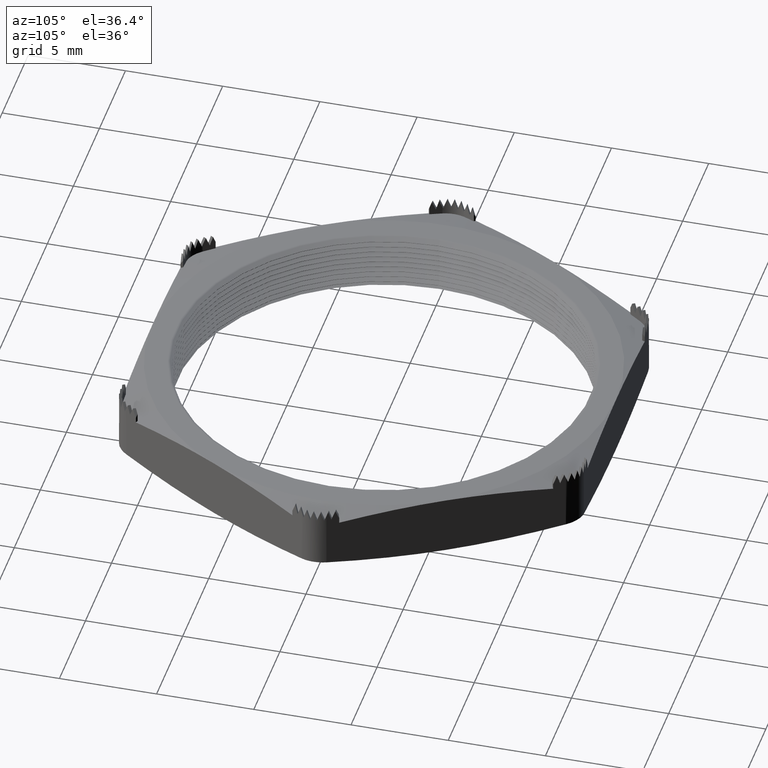
[diagram: clean part render]
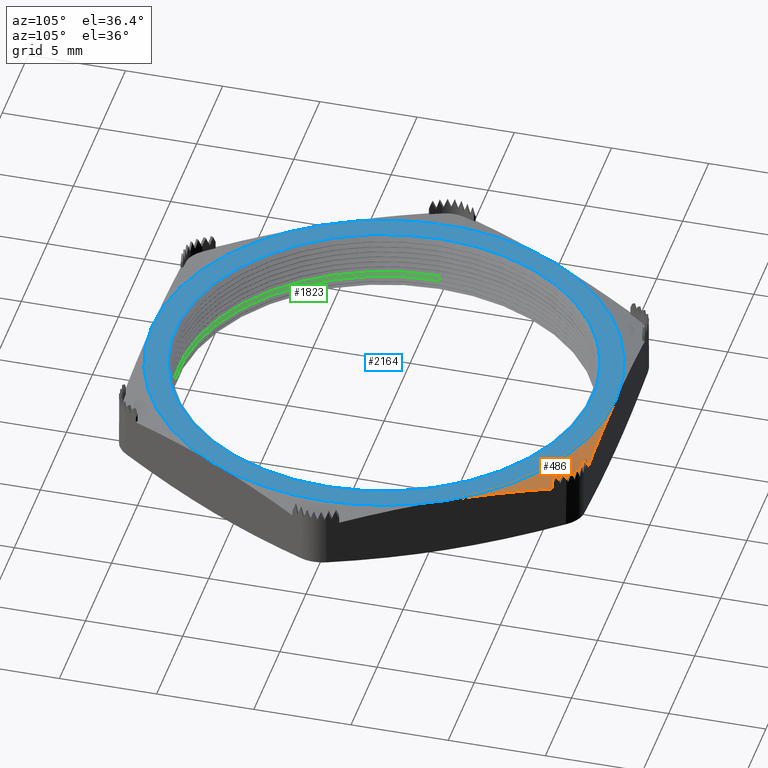
[diagram: same view with three faces highlighted in distinct colors, each labeled with its STEP entity id]
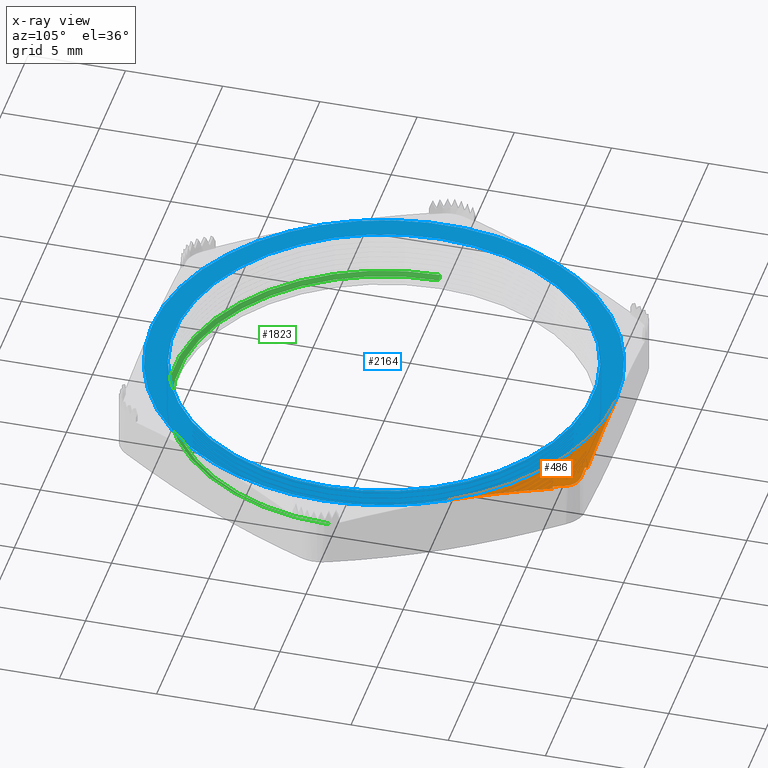
[diagram: x-ray of the same camera — body ghosted, the three highlighted faces saturated]
A machine part, auxiliary view with three faces highlighted in distinct colors.
The next image is the same camera in x-ray (body ghosted, the three faces saturated) — at least one of them is partly hidden behind the body in this view.
Their STEP definitions:

[orange] entity #486 — the highlighted conical surface has half-angle 75 deg.
#18 = VERTEX_POINT ( 'NONE', #2373 ) ;
#61 = EDGE_CURVE ( 'NONE', #1806, #18, #2451, .T. ) ;
#76 = VERTEX_POINT ( 'NONE', #2506 ) ;
#78 = EDGE_CURVE ( 'NONE', #79, #76, #2498, .T. ) ;
#79 = VERTEX_POINT ( 'NONE', #2497 ) ;
#471 = EDGE_CURVE ( 'NONE', #496, #472, #3168, .T. ) ;
#472 = VERTEX_POINT ( 'NONE', #3167 ) ;
#473 = ORIENTED_EDGE ( 'NONE', *, *, #474, .T. ) ;
#474 = EDGE_CURVE ( 'NONE', #472, #79, #3161, .T. ) ;
#475 = ORIENTED_EDGE ( 'NONE', *, *, #78, .T. ) ;
#476 = ORIENTED_EDGE ( 'NONE', *, *, #2172, .F. ) ;
#477 = ORIENTED_EDGE ( 'NONE', *, *, #61, .T. ) ;
#486 = ADVANCED_FACE ( 'NONE', ( #3193 ), #3183, .T. ) ;
#487 = EDGE_LOOP ( 'NONE', ( #488, #491, #494, #497, #473, #475, #476, #477 ) ) ;
#488 = ORIENTED_EDGE ( 'NONE', *, *, #489, .T. ) ;
#489 = EDGE_CURVE ( 'NONE', #18, #490, #3228, .T. ) ;
#490 = VERTEX_POINT ( 'NONE', #3227 ) ;
#491 = ORIENTED_EDGE ( 'NONE', *, *, #492, .T. ) ;
#492 = EDGE_CURVE ( 'NONE', #490, #493, #3222, .T. ) ;
#493 = VERTEX_POINT ( 'NONE', #3221 ) ;
#494 = ORIENTED_EDGE ( 'NONE', *, *, #495, .T. ) ;
#495 = EDGE_CURVE ( 'NONE', #493, #496, #3215, .T. ) ;
#496 = VERTEX_POINT ( 'NONE', #3214 ) ;
#497 = ORIENTED_EDGE ( 'NONE', *, *, #471, .T. ) ;
#1806 = VERTEX_POINT ( 'NONE', #5350 ) ;
#2172 = EDGE_CURVE ( 'NONE', #1806, #76, #6077, .T. ) ;
#2373 = CARTESIAN_POINT ( 'NONE',  ( 0.2987883832488624800, 0.4224833395016088800, 0.1072826604981893100 ) ) ;
#2446 = CARTESIAN_POINT ( 'NONE',  ( 0.2987883832488624800, 0.4224833395016088800, 0.1072826604981893100 ) ) ;
#2447 = CARTESIAN_POINT ( 'NONE',  ( 0.3348695687588038000, 0.3599888930010725600, 0.1153720740230359000 ) ) ;
#2448 = CARTESIAN_POINT ( 'NONE',  ( 0.3709507542687450800, 0.2974944465005363000, 0.1199999999999999700 ) ) ;
#2449 = CARTESIAN_POINT ( 'NONE',  ( 0.4070319397786862400, 0.2350000000000000100, 0.1200000000000000000 ) ) ;
#2451 = B_SPLINE_CURVE_WITH_KNOTS ( 'NONE', 3,
 ( #2449, #2448, #2447, #2446 ),
 .UNSPECIFIED., .F., .F.,
 ( 4, 4 ),
 ( 0.006159403611822597700, 0.01165817628353764600 ),
 .UNSPECIFIED. ) ;
#2493 = CARTESIAN_POINT ( 'NONE',  ( 0.0000000000000000000, 0.4700000000000000300, 0.1200000000000000000 ) ) ;
#2494 = CARTESIAN_POINT ( 'NONE',  ( 0.07231509973300751000, 0.4700000000000000300, 0.1200000000000000000 ) ) ;
#2495 = CARTESIAN_POINT ( 'NONE',  ( 0.1444629044170035700, 0.4700000000000000300, 0.1153565859980811800 ) ) ;
#2496 = CARTESIAN_POINT ( 'NONE',  ( 0.2164871130596065800, 0.4700000000000000300, 0.1072826604981939600 ) ) ;
#2497 = CARTESIAN_POINT ( 'NONE',  ( 0.2164871130596065800, 0.4700000000000000300, 0.1072826604981939600 ) ) ;
#2498 = B_SPLINE_CURVE_WITH_KNOTS ( 'NONE', 3,
 ( #2496, #2495, #2494, #2493 ),
 .UNSPECIFIED., .F., .F.,
 ( 4, 4 ),
 ( 0.02699905887814523000, 0.03253233604985127800 ),
 .UNSPECIFIED. ) ;
#2506 = CARTESIAN_POINT ( 'NONE',  ( 0.0000000000000000000, 0.4700000000000000300, 0.1200000000000000000 ) ) ;
#3157 = CARTESIAN_POINT ( 'NONE',  ( 0.2164871130596374700, 0.4666239525238720100, 0.1081038093983640200 ) ) ;
#3158 = CARTESIAN_POINT ( 'NONE',  ( 0.2164871130596375300, 0.4658119868147233600, 0.1083011389553743000 ) ) ;
#3159 = CARTESIAN_POINT ( 'NONE',  ( 0.2164871130596369700, 0.4650000000000024700, 0.1084983816075398700 ) ) ;
#3161 = B_SPLINE_CURVE_WITH_KNOTS ( 'NONE', 3,
 ( #3159, #3158, #3157, #3211, #3210, #3209, #3208 ),
 .UNSPECIFIED., .F., .F.,
 ( 4, 3, 4 ),
 ( 0.001428135866877830500, 0.001491808358741321200, 0.001558835567903115800 ),
 .UNSPECIFIED. ) ;
#3163 = CARTESIAN_POINT ( 'NONE',  ( 0.2164871130596369700, 0.4650000000000024700, 0.1084983816075398700 ) ) ;
#3164 = CARTESIAN_POINT ( 'NONE',  ( 0.2251594705227408000, 0.4650000000000026300, 0.1075176094620743800 ) ) ;
#3165 = CARTESIAN_POINT ( 'NONE',  ( 0.2338263287161614900, 0.4650000000000026900, 0.1064890226203382700 ) ) ;
#3166 = CARTESIAN_POINT ( 'NONE',  ( 0.2424871130596374100, 0.4650000000000028000, 0.1054159916586123300 ) ) ;
#3167 = CARTESIAN_POINT ( 'NONE',  ( 0.2164871130596369700, 0.4650000000000024700, 0.1084983816075398700 ) ) ;
#3168 = B_SPLINE_CURVE_WITH_KNOTS ( 'NONE', 3,
 ( #3166, #3165, #3164, #3163 ),
 .UNSPECIFIED., .F., .F.,
 ( 4, 4 ),
 ( 0.001360882044426955700, 0.002025869129947356300 ),
 .UNSPECIFIED. ) ;
#3183 = CONICAL_SURFACE ( 'NONE', #3192, 0.4700000000000000300, 1.308996938995750100 ) ;
#3190 = DIRECTION ( 'NONE',  ( 0.0000000000000000000, 0.0000000000000000000, -1.000000000000000000 ) ) ;
#3191 = CARTESIAN_POINT ( 'NONE',  ( 0.0000000000000000000, 0.0000000000000000000, 0.1200000000000000000 ) ) ;
#3192 = AXIS2_PLACEMENT_3D ( 'NONE', #3191, #3190, #3229 ) ;
#3193 = FACE_OUTER_BOUND ( 'NONE', #487, .T. ) ;
#3208 = CARTESIAN_POINT ( 'NONE',  ( 0.2164871130596065800, 0.4700000000000000300, 0.1072826604981939600 ) ) ;
#3209 = CARTESIAN_POINT ( 'NONE',  ( 0.2164871130596374100, 0.4691453220408013900, 0.1074906658723470000 ) ) ;
#3210 = CARTESIAN_POINT ( 'NONE',  ( 0.2164871130596374700, 0.4682906212597137100, 0.1076985774961256600 ) ) ;
#3211 = CARTESIAN_POINT ( 'NONE',  ( 0.2164871130596374700, 0.4674358973737115000, 0.1079063940698482700 ) ) ;
#3212 = CARTESIAN_POINT ( 'NONE',  ( 0.2814582562299377000, 0.4425000000000026700, 0.1054159916586060900 ) ) ;
#3214 = CARTESIAN_POINT ( 'NONE',  ( 0.2424871130596374100, 0.4650000000000028000, 0.1054159916586123300 ) ) ;
#3215 = B_SPLINE_CURVE_WITH_KNOTS ( 'NONE', 3,
 ( #3212, #3255, #3254, #3253, #3252, #3251, #3250, #3249, #3248, #3247 ),
 .UNSPECIFIED., .F., .F.,
 ( 4, 2, 2, 2, 4 ),
 ( 2.294381583156157100E-007, 0.0002986832191508300800, 0.0005971370001433446200, 0.0008955907811358590500, 0.001194044562128373600 ),
 .UNSPECIFIED. ) ;
#3217 = CARTESIAN_POINT ( 'NONE',  ( 0.2814582562299377000, 0.4425000000000026700, 0.1054159916586060900 ) ) ;
#3218 = CARTESIAN_POINT ( 'NONE',  ( 0.2857888249753055000, 0.4349992349073560900, 0.1064890663736438700 ) ) ;
#3219 = CARTESIAN_POINT ( 'NONE',  ( 0.2901222171407989400, 0.4274935795076008600, 0.1075176410468861400 ) ) ;
#3220 = CARTESIAN_POINT ( 'NONE',  ( 0.2944582562299379900, 0.4199833395016075400, 0.1084983816075398800 ) ) ;
#3221 = CARTESIAN_POINT ( 'NONE',  ( 0.2814582562299377000, 0.4425000000000026700, 0.1054159916586060900 ) ) ;
#3222 = B_SPLINE_CURVE_WITH_KNOTS ( 'NONE', 3,
 ( #3220, #3219, #3218, #3217 ),
 .UNSPECIFIED., .F., .F.,
 ( 4, 4 ),
 ( 2.324088198728966800E-007, 0.0006652571509232727300 ),
 .UNSPECIFIED. ) ;
#3223 = CARTESIAN_POINT ( 'NONE',  ( 0.2944582562299379900, 0.4199833395016075400, 0.1084983816075398800 ) ) ;
#3224 = CARTESIAN_POINT ( 'NONE',  ( 0.2959017082864928100, 0.4208167169350225400, 0.1080935041581983200 ) ) ;
#3225 = CARTESIAN_POINT ( 'NONE',  ( 0.2973450833492785600, 0.4216500499160634700, 0.1076882605494289300 ) ) ;
#3226 = CARTESIAN_POINT ( 'NONE',  ( 0.2987883832488624800, 0.4224833395016088800, 0.1072826604981893100 ) ) ;
#3227 = CARTESIAN_POINT ( 'NONE',  ( 0.2944582562299379900, 0.4199833395016075400, 0.1084983816075398800 ) ) ;
#3228 = B_SPLINE_CURVE_WITH_KNOTS ( 'NONE', 3,
 ( #3226, #3225, #3224, #3223 ),
 .UNSPECIFIED., .F., .F.,
 ( 4, 4 ),
 ( 2.376810718793412900E-007, 0.0001309378423862692400 ),
 .UNSPECIFIED. ) ;
#3229 = DIRECTION ( 'NONE',  ( 1.000000000000000000, 0.0000000000000000000, 0.0000000000000000000 ) ) ;
#3247 = CARTESIAN_POINT ( 'NONE',  ( 0.2424871130596374100, 0.4650000000000028000, 0.1054159916586123300 ) ) ;
#3248 = CARTESIAN_POINT ( 'NONE',  ( 0.2464294635274260300, 0.4650000000000030200, 0.1049275527428946400 ) ) ;
#3249 = CARTESIAN_POINT ( 'NONE',  ( 0.2503448507682387000, 0.4644810093271269900, 0.1045562355294598600 ) ) ;
#3250 = CARTESIAN_POINT ( 'NONE',  ( 0.2579028464107949700, 0.4624577366083395500, 0.1040579474236625600 ) ) ;
#3251 = CARTESIAN_POINT ( 'NONE',  ( 0.2616122732724220900, 0.4609215904354813100, 0.1039295335434732000 ) ) ;
#3252 = CARTESIAN_POINT ( 'NONE',  ( 0.2683961942780421800, 0.4570009165744856100, 0.1039303776759223200 ) ) ;
#3253 = CARTESIAN_POINT ( 'NONE',  ( 0.2715622863213266200, 0.4545696908229008800, 0.1040583194686278100 ) ) ;
#3254 = CARTESIAN_POINT ( 'NONE',  ( 0.2771120392925963700, 0.4490093727465856400, 0.1045599849874601200 ) ) ;
#3255 = CARTESIAN_POINT ( 'NONE',  ( 0.2794872220597074400, 0.4459139313262958600, 0.1049275876971605400 ) ) ;
#5350 = CARTESIAN_POINT ( 'NONE',  ( 0.4070319397786862400, 0.2350000000000000100, 0.1200000000000000000 ) ) ;
#6073 = DIRECTION ( 'NONE',  ( 1.000000000000000000, 0.0000000000000000000, 0.0000000000000000000 ) ) ;
#6074 = DIRECTION ( 'NONE',  ( 0.0000000000000000000, 0.0000000000000000000, 1.000000000000000000 ) ) ;
#6075 = CARTESIAN_POINT ( 'NONE',  ( 0.0000000000000000000, 0.0000000000000000000, 0.1200000000000000000 ) ) ;
#6076 = AXIS2_PLACEMENT_3D ( 'NONE', #6075, #6074, #6073 ) ;
#6077 = CIRCLE ( 'NONE', #6076, 0.4700000000000000300 ) ;

[blue] entity #2164 — the highlighted planar face has unit normal (0, 0, -1).
#76 = VERTEX_POINT ( 'NONE', #2506 ) ;
#1779 = VERTEX_POINT ( 'NONE', #5276 ) ;
#1781 = EDGE_CURVE ( 'NONE', #1782, #1779, #5275, .T. ) ;
#1782 = VERTEX_POINT ( 'NONE', #5270 ) ;
#1805 = EDGE_CURVE ( 'NONE', #1806, #1807, #5349, .T. ) ;
#1806 = VERTEX_POINT ( 'NONE', #5350 ) ;
#1807 = VERTEX_POINT ( 'NONE', #5344 ) ;
#2022 = VERTEX_POINT ( 'NONE', #5749 ) ;
#2065 = VERTEX_POINT ( 'NONE', #5829 ) ;
#2155 = EDGE_CURVE ( 'NONE', #2065, #76, #6025, .T. ) ;
#2158 = ORIENTED_EDGE ( 'NONE', *, *, #2155, .F. ) ;
#2159 = EDGE_LOOP ( 'NONE', ( #2158, #2181, #2178, #2179, #2175, #2176, #2173 ) ) ;
#2160 = EDGE_CURVE ( 'NONE', #1779, #1782, #6020, .T. ) ;
#2161 = ORIENTED_EDGE ( 'NONE', *, *, #2160, .T. ) ;
#2162 = ORIENTED_EDGE ( 'NONE', *, *, #1781, .T. ) ;
#2163 = EDGE_LOOP ( 'NONE', ( #2162, #2161 ) ) ;
#2164 = ADVANCED_FACE ( 'NONE', ( #6015, #6014 ), #6013, .F. ) ;
#2172 = EDGE_CURVE ( 'NONE', #1806, #76, #6077, .T. ) ;
#2173 = ORIENTED_EDGE ( 'NONE', *, *, #2172, .T. ) ;
#2174 = EDGE_CURVE ( 'NONE', #1807, #2307, #6072, .T. ) ;
#2175 = ORIENTED_EDGE ( 'NONE', *, *, #2174, .F. ) ;
#2176 = ORIENTED_EDGE ( 'NONE', *, *, #1805, .F. ) ;
#2177 = EDGE_CURVE ( 'NONE', #2307, #2347, #6067, .T. ) ;
#2178 = ORIENTED_EDGE ( 'NONE', *, *, #2180, .F. ) ;
#2179 = ORIENTED_EDGE ( 'NONE', *, *, #2177, .F. ) ;
#2180 = EDGE_CURVE ( 'NONE', #2347, #2022, #6062, .T. ) ;
#2181 = ORIENTED_EDGE ( 'NONE', *, *, #2182, .F. ) ;
#2182 = EDGE_CURVE ( 'NONE', #2022, #2065, #6057, .T. ) ;
#2307 = VERTEX_POINT ( 'NONE', #6327 ) ;
#2347 = VERTEX_POINT ( 'NONE', #6408 ) ;
#2506 = CARTESIAN_POINT ( 'NONE',  ( 0.0000000000000000000, 0.4700000000000000300, 0.1200000000000000000 ) ) ;
#5270 = CARTESIAN_POINT ( 'NONE',  ( -0.4230000000000001000, 0.0000000000000000000, 0.1200000000000000000 ) ) ;
#5271 = DIRECTION ( 'NONE',  ( -1.000000000000000000, 0.0000000000000000000, 0.0000000000000000000 ) ) ;
#5272 = DIRECTION ( 'NONE',  ( 0.0000000000000000000, 0.0000000000000000000, -1.000000000000000000 ) ) ;
#5273 = CARTESIAN_POINT ( 'NONE',  ( 0.0000000000000000000, 0.0000000000000000000, 0.1200000000000000000 ) ) ;
#5274 = AXIS2_PLACEMENT_3D ( 'NONE', #5273, #5272, #5271 ) ;
#5275 = CIRCLE ( 'NONE', #5274, 0.4230000000000001000 ) ;
#5276 = CARTESIAN_POINT ( 'NONE',  ( 0.4230000000000001000, 5.180255960393306200E-017, 0.1200000000000000000 ) ) ;
#5344 = CARTESIAN_POINT ( 'NONE',  ( 0.4700000000000000300, 0.0000000000000000000, 0.1200000000000000000 ) ) ;
#5345 = DIRECTION ( 'NONE',  ( -1.000000000000000000, 0.0000000000000000000, 0.0000000000000000000 ) ) ;
#5346 = DIRECTION ( 'NONE',  ( 0.0000000000000000000, 0.0000000000000000000, -1.000000000000000000 ) ) ;
#5347 = CARTESIAN_POINT ( 'NONE',  ( 0.0000000000000000000, 0.0000000000000000000, 0.1200000000000000000 ) ) ;
#5348 = AXIS2_PLACEMENT_3D ( 'NONE', #5347, #5346, #5345 ) ;
#5349 = CIRCLE ( 'NONE', #5348, 0.4700000000000000300 ) ;
#5350 = CARTESIAN_POINT ( 'NONE',  ( 0.4070319397786862400, 0.2350000000000000100, 0.1200000000000000000 ) ) ;
#5749 = CARTESIAN_POINT ( 'NONE',  ( -0.4070319397786862400, -0.2349999999999999300, 0.1200000000000000000 ) ) ;
#5829 = CARTESIAN_POINT ( 'NONE',  ( -0.4070319397786861800, 0.2350000000000001000, 0.1200000000000000000 ) ) ;
#6009 = DIRECTION ( 'NONE',  ( -1.000000000000000000, 0.0000000000000000000, 0.0000000000000000000 ) ) ;
#6010 = DIRECTION ( 'NONE',  ( 0.0000000000000000000, 0.0000000000000000000, -1.000000000000000000 ) ) ;
#6011 = CARTESIAN_POINT ( 'NONE',  ( 1.365923996832131600E-016, 0.9400000000000000600, 0.1200000000000000000 ) ) ;
#6012 = AXIS2_PLACEMENT_3D ( 'NONE', #6011, #6010, #6009 ) ;
#6013 = PLANE ( 'NONE',  #6012 ) ;
#6014 = FACE_OUTER_BOUND ( 'NONE', #2159, .T. ) ;
#6015 = FACE_BOUND ( 'NONE', #2163, .T. ) ;
#6016 = DIRECTION ( 'NONE',  ( -1.000000000000000000, 0.0000000000000000000, 0.0000000000000000000 ) ) ;
#6017 = DIRECTION ( 'NONE',  ( 0.0000000000000000000, 0.0000000000000000000, -1.000000000000000000 ) ) ;
#6018 = CARTESIAN_POINT ( 'NONE',  ( 0.0000000000000000000, 0.0000000000000000000, 0.1200000000000000000 ) ) ;
#6019 = AXIS2_PLACEMENT_3D ( 'NONE', #6018, #6017, #6016 ) ;
#6020 = CIRCLE ( 'NONE', #6019, 0.4230000000000001000 ) ;
#6021 = DIRECTION ( 'NONE',  ( -1.000000000000000000, 0.0000000000000000000, 0.0000000000000000000 ) ) ;
#6022 = DIRECTION ( 'NONE',  ( 0.0000000000000000000, 0.0000000000000000000, -1.000000000000000000 ) ) ;
#6023 = CARTESIAN_POINT ( 'NONE',  ( 0.0000000000000000000, 0.0000000000000000000, 0.1200000000000000000 ) ) ;
#6024 = AXIS2_PLACEMENT_3D ( 'NONE', #6023, #6022, #6021 ) ;
#6025 = CIRCLE ( 'NONE', #6024, 0.4700000000000000300 ) ;
#6053 = DIRECTION ( 'NONE',  ( -1.000000000000000000, 0.0000000000000000000, 0.0000000000000000000 ) ) ;
#6054 = DIRECTION ( 'NONE',  ( 0.0000000000000000000, 0.0000000000000000000, -1.000000000000000000 ) ) ;
#6055 = CARTESIAN_POINT ( 'NONE',  ( 0.0000000000000000000, 0.0000000000000000000, 0.1200000000000000000 ) ) ;
#6056 = AXIS2_PLACEMENT_3D ( 'NONE', #6055, #6054, #6053 ) ;
#6057 = CIRCLE ( 'NONE', #6056, 0.4700000000000000300 ) ;
#6058 = DIRECTION ( 'NONE',  ( -1.000000000000000000, 0.0000000000000000000, 0.0000000000000000000 ) ) ;
#6059 = DIRECTION ( 'NONE',  ( 0.0000000000000000000, 0.0000000000000000000, -1.000000000000000000 ) ) ;
#6060 = CARTESIAN_POINT ( 'NONE',  ( 0.0000000000000000000, 0.0000000000000000000, 0.1200000000000000000 ) ) ;
#6061 = AXIS2_PLACEMENT_3D ( 'NONE', #6060, #6059, #6058 ) ;
#6062 = CIRCLE ( 'NONE', #6061, 0.4700000000000000300 ) ;
#6063 = DIRECTION ( 'NONE',  ( -1.000000000000000000, 0.0000000000000000000, 0.0000000000000000000 ) ) ;
#6064 = DIRECTION ( 'NONE',  ( 0.0000000000000000000, 0.0000000000000000000, -1.000000000000000000 ) ) ;
#6065 = CARTESIAN_POINT ( 'NONE',  ( 0.0000000000000000000, 0.0000000000000000000, 0.1200000000000000000 ) ) ;
#6066 = AXIS2_PLACEMENT_3D ( 'NONE', #6065, #6064, #6063 ) ;
#6067 = CIRCLE ( 'NONE', #6066, 0.4700000000000000300 ) ;
#6068 = DIRECTION ( 'NONE',  ( -1.000000000000000000, 0.0000000000000000000, 0.0000000000000000000 ) ) ;
#6069 = DIRECTION ( 'NONE',  ( 0.0000000000000000000, 0.0000000000000000000, -1.000000000000000000 ) ) ;
#6070 = CARTESIAN_POINT ( 'NONE',  ( 0.0000000000000000000, 0.0000000000000000000, 0.1200000000000000000 ) ) ;
#6071 = AXIS2_PLACEMENT_3D ( 'NONE', #6070, #6069, #6068 ) ;
#6072 = CIRCLE ( 'NONE', #6071, 0.4700000000000000300 ) ;
#6073 = DIRECTION ( 'NONE',  ( 1.000000000000000000, 0.0000000000000000000, 0.0000000000000000000 ) ) ;
#6074 = DIRECTION ( 'NONE',  ( 0.0000000000000000000, 0.0000000000000000000, 1.000000000000000000 ) ) ;
#6075 = CARTESIAN_POINT ( 'NONE',  ( 0.0000000000000000000, 0.0000000000000000000, 0.1200000000000000000 ) ) ;
#6076 = AXIS2_PLACEMENT_3D ( 'NONE', #6075, #6074, #6073 ) ;
#6077 = CIRCLE ( 'NONE', #6076, 0.4700000000000000300 ) ;
#6327 = CARTESIAN_POINT ( 'NONE',  ( 0.4070319397786861800, -0.2350000000000000100, 0.1200000000000000000 ) ) ;
#6408 = CARTESIAN_POINT ( 'NONE',  ( 5.914624404477003900E-017, -0.4700000000000000300, 0.1200000000000000000 ) ) ;

[green] entity #1823 — the highlighted conical surface has half-angle 60 deg.
#1602 = VERTEX_POINT ( 'NONE', #4923 ) ;
#1603 = ORIENTED_EDGE ( 'NONE', *, *, #1670, .T. ) ;
#1604 = VERTEX_POINT ( 'NONE', #4922 ) ;
#1605 = ORIENTED_EDGE ( 'NONE', *, *, #1606, .T. ) ;
#1606 = EDGE_CURVE ( 'NONE', #1604, #1607, #4921, .T. ) ;
#1607 = VERTEX_POINT ( 'NONE', #4916 ) ;
#1608 = VERTEX_POINT ( 'NONE', #4915 ) ;
#1609 = ORIENTED_EDGE ( 'NONE', *, *, #1622, .F. ) ;
#1615 = ORIENTED_EDGE ( 'NONE', *, *, #1623, .F. ) ;
#1622 = EDGE_CURVE ( 'NONE', #1602, #1608, #4967, .T. ) ;
#1623 = EDGE_CURVE ( 'NONE', #1608, #1607, #4962, .T. ) ;
#1670 = EDGE_CURVE ( 'NONE', #1602, #1604, #5046, .T. ) ;
#1823 = ADVANCED_FACE ( 'NONE', ( #5375 ), #5374, .F. ) ;
#1824 = EDGE_LOOP ( 'NONE', ( #1609, #1603, #1605, #1615 ) ) ;
#4915 = CARTESIAN_POINT ( 'NONE',  ( 0.4150000000000000900, 5.082284216461515600E-017, 0.02445299461620752100 ) ) ;
#4916 = CARTESIAN_POINT ( 'NONE',  ( 0.4250000000000001000, 5.204748896376252500E-017, 0.03022649730810386700 ) ) ;
#4917 = DIRECTION ( 'NONE',  ( 1.000000000000000000, 0.0000000000000000000, 0.0000000000000000000 ) ) ;
#4918 = DIRECTION ( 'NONE',  ( 0.0000000000000000000, 0.0000000000000000000, 1.000000000000000000 ) ) ;
#4919 = CARTESIAN_POINT ( 'NONE',  ( 0.0000000000000000000, 0.0000000000000000000, 0.03022649730810386700 ) ) ;
#4920 = AXIS2_PLACEMENT_3D ( 'NONE', #4919, #4918, #4917 ) ;
#4921 = CIRCLE ( 'NONE', #4920, 0.4250000000000001000 ) ;
#4922 = CARTESIAN_POINT ( 'NONE',  ( -0.4250000000000001000, 0.0000000000000000000, 0.03022649730810386700 ) ) ;
#4923 = CARTESIAN_POINT ( 'NONE',  ( -0.4150000000000000900, 0.0000000000000000000, 0.02445299461620752100 ) ) ;
#4959 = DIRECTION ( 'NONE',  ( 0.8660254037844360400, 0.0000000000000000000, 0.5000000000000045500 ) ) ;
#4960 = VECTOR ( 'NONE', #4959, 39.37007874015748100 ) ;
#4961 = CARTESIAN_POINT ( 'NONE',  ( 0.4150000000000000900, 0.0000000000000000000, 0.02445299461620752100 ) ) ;
#4962 = LINE ( 'NONE', #4961, #4960 ) ;
#4963 = DIRECTION ( 'NONE',  ( 1.000000000000000000, 0.0000000000000000000, 0.0000000000000000000 ) ) ;
#4964 = DIRECTION ( 'NONE',  ( 0.0000000000000000000, 0.0000000000000000000, 1.000000000000000000 ) ) ;
#4965 = CARTESIAN_POINT ( 'NONE',  ( 0.0000000000000000000, 0.0000000000000000000, 0.02445299461620752100 ) ) ;
#4966 = AXIS2_PLACEMENT_3D ( 'NONE', #4965, #4964, #4963 ) ;
#4967 = CIRCLE ( 'NONE', #4966, 0.4150000000000000900 ) ;
#5043 = DIRECTION ( 'NONE',  ( -0.8660254037844360400, 1.060575238724903700E-016, 0.5000000000000045500 ) ) ;
#5044 = VECTOR ( 'NONE', #5043, 39.37007874015748100 ) ;
#5045 = CARTESIAN_POINT ( 'NONE',  ( -0.4150000000000000900, 5.082284216461516900E-017, 0.02445299461620752100 ) ) ;
#5046 = LINE ( 'NONE', #5045, #5044 ) ;
#5369 = DIRECTION ( 'NONE',  ( 1.000000000000000000, 0.0000000000000000000, 0.0000000000000000000 ) ) ;
#5370 = DIRECTION ( 'NONE',  ( 0.0000000000000000000, 0.0000000000000000000, 1.000000000000000000 ) ) ;
#5371 = CARTESIAN_POINT ( 'NONE',  ( 0.0000000000000000000, 0.0000000000000000000, 0.02445299461620752100 ) ) ;
#5372 = AXIS2_PLACEMENT_3D ( 'NONE', #5371, #5370, #5369 ) ;
#5374 = CONICAL_SURFACE ( 'NONE', #5372, 0.4150000000000000900, 1.047197551196592500 ) ;
#5375 = FACE_OUTER_BOUND ( 'NONE', #1824, .T. ) ;